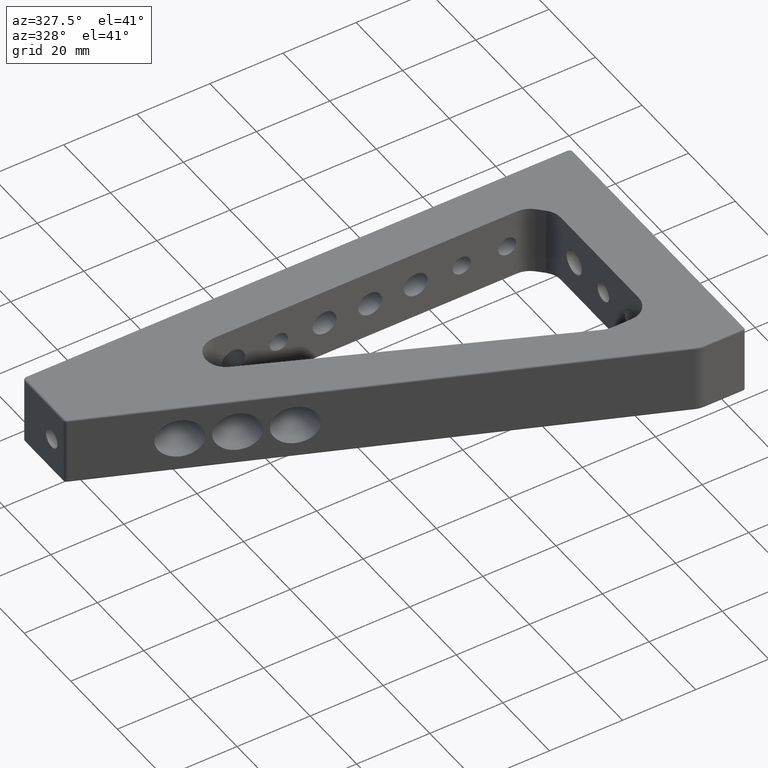
[diagram: clean part render]
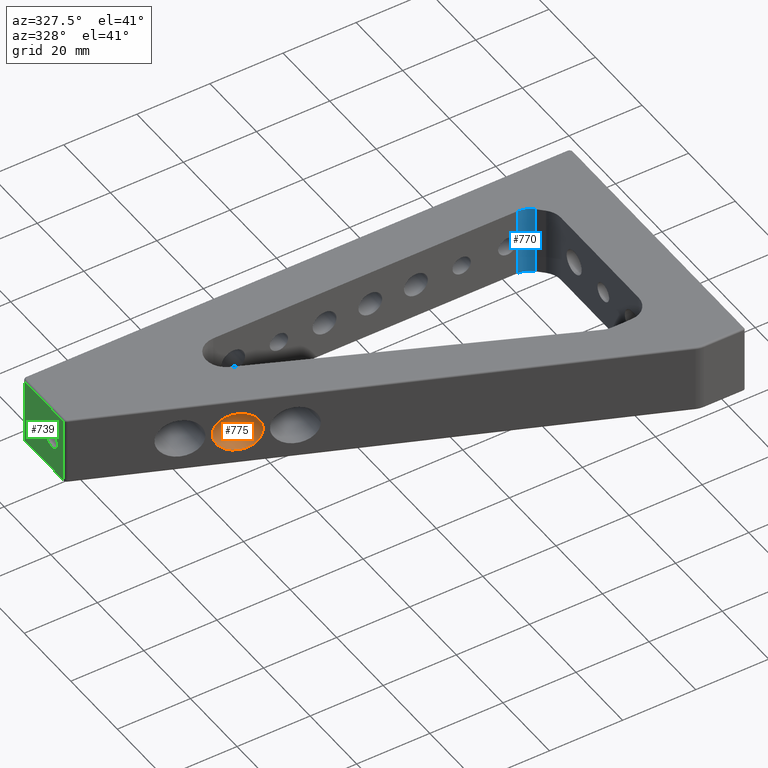
[diagram: same view with three faces highlighted in distinct colors, each labeled with its STEP entity id]
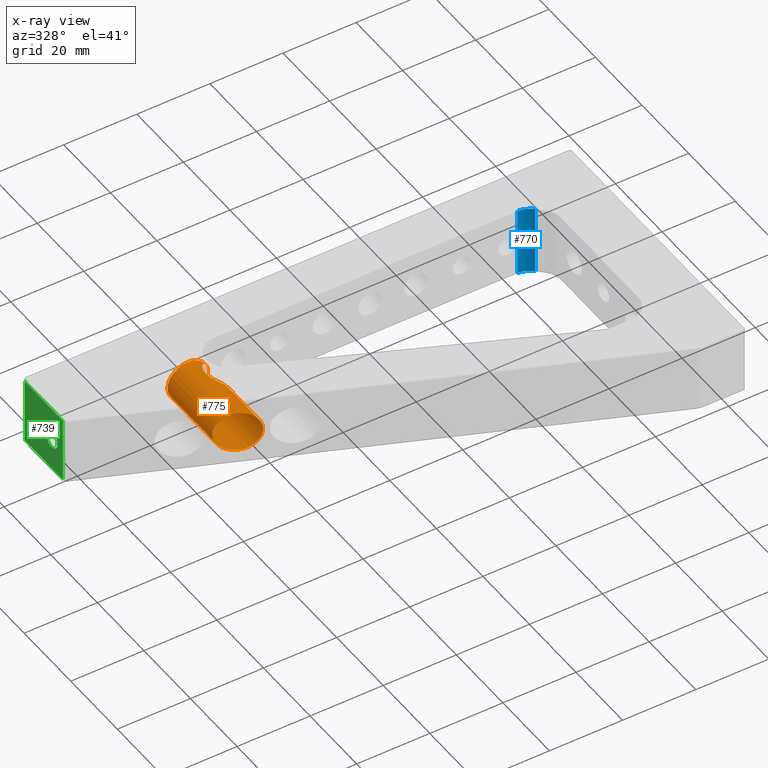
[diagram: x-ray of the same camera — body ghosted, the three highlighted faces saturated]
A machine part, auxiliary view with three faces highlighted in distinct colors.
The next image is the same camera in x-ray (body ghosted, the three faces saturated) — at least one of them is partly hidden behind the body in this view.
Their STEP definitions:

[orange] entity #775 — the highlighted cylindrical surface (bore or boss wall) has radius 5.5 mm, axis along (-0, -1, -0).
#28 = CARTESIAN_POINT ( 'NONE',  ( 692.1671691626518200, 643.1374962495044700, 0.0000000000000000000 ) ) ;
#29 = DIRECTION ( 'NONE',  ( -0.0000000000000000000, 1.000000000000000000, -0.0000000000000000000 ) ) ;
#30 = DIRECTION ( 'NONE',  ( 0.0000000000000000000, 0.0000000000000000000, -1.000000000000000000 ) ) ;
#167 = EDGE_CURVE ( 'NONE', #1269, #1275, #2055, .T. ) ;
#170 = EDGE_CURVE ( 'NONE', #1275, #1269, #2053, .T. ) ;
#177 = EDGE_CURVE ( 'NONE', #1444, #1444, #855, .T. ) ;
#281 = DIRECTION ( 'NONE',  ( 0.0000000000000000000, 0.0000000000000000000, -1.000000000000000000 ) ) ;
#282 = CARTESIAN_POINT ( 'NONE',  ( 692.1671691626518200, 658.6938454356084100, 0.0000000000000000000 ) ) ;
#283 = DIRECTION ( 'NONE',  ( -0.0000000000000000000, -1.000000000000000000, -0.0000000000000000000 ) ) ;
#368 = AXIS2_PLACEMENT_3D ( 'NONE', #282, #283, #281 ) ;
#401 = CARTESIAN_POINT ( 'NONE',  ( 697.9224593770711600, 632.1843651504041200, 0.9786666869081022100 ) ) ;
#405 = CARTESIAN_POINT ( 'NONE',  ( 696.8808069510799900, 632.6447559291560800, -2.839417558426098300 ) ) ;
#409 = CARTESIAN_POINT ( 'NONE',  ( 696.9663568887308400, 632.6069444659131000, -2.686595832992383100 ) ) ;
#413 = CARTESIAN_POINT ( 'NONE',  ( 696.7872590549611700, 632.6887477584369900, -2.989066394117855000 ) ) ;
#414 = CARTESIAN_POINT ( 'NONE',  ( 696.5908935349401600, 632.7889899744327500, -3.272676458112464500 ) ) ;
#415 = CARTESIAN_POINT ( 'NONE',  ( 696.4879448907412300, 632.8452533635331700, -3.407127397660297600 ) ) ;
#416 = CARTESIAN_POINT ( 'NONE',  ( 696.2743444030846800, 632.9721188765769300, -3.661793486900985600 ) ) ;
#417 = CARTESIAN_POINT ( 'NONE',  ( 696.1636873424187100, 633.0427179115999900, -3.782005812418727200 ) ) ;
#418 = CARTESIAN_POINT ( 'NONE',  ( 695.9365002325948800, 633.2006728595272300, -4.008474624035605900 ) ) ;
#419 = CARTESIAN_POINT ( 'NONE',  ( 695.8190525808998900, 633.2888011838032300, -4.115462845687698500 ) ) ;
#420 = CARTESIAN_POINT ( 'NONE',  ( 695.4683312896710300, 633.5764178730687500, -4.409702523978179300 ) ) ;
#421 = CARTESIAN_POINT ( 'NONE',  ( 695.2381724696458600, 633.7973826864373500, -4.569886257037434300 ) ) ;
#422 = CARTESIAN_POINT ( 'NONE',  ( 694.9114250652786500, 634.1771944206639100, -4.768153727529729700 ) ) ;
#423 = CARTESIAN_POINT ( 'NONE',  ( 694.8051661120160800, 634.3126055095212900, -4.827379032851460700 ) ) ;
#424 = CARTESIAN_POINT ( 'NONE',  ( 694.6058775688089800, 634.5932259920707600, -4.931056432591796900 ) ) ;
#425 = CARTESIAN_POINT ( 'NONE',  ( 694.5122081637468900, 634.7390589730753200, -4.975936078455037000 ) ) ;
#426 = CARTESIAN_POINT ( 'NONE',  ( 694.2505679715815200, 635.1928549969242100, -5.093725600879979600 ) ) ;
#427 = CARTESIAN_POINT ( 'NONE',  ( 694.1009624929187100, 635.5206870148692800, -5.150276987406107800 ) ) ;
#428 = CARTESIAN_POINT ( 'NONE',  ( 693.8704877008837000, 636.1945545403759800, -5.231024340270745500 ) ) ;
#429 = CARTESIAN_POINT ( 'NONE',  ( 693.7879264793998600, 636.5418737324128000, -5.256015558794457500 ) ) ;
#430 = CARTESIAN_POINT ( 'NONE',  ( 693.6910736354497000, 637.2571790702456800, -5.284909553802138200 ) ) ;
#431 = CARTESIAN_POINT ( 'NONE',  ( 693.6782333214536000, 637.6159179375100600, -5.288402131395511000 ) ) ;
#432 = CARTESIAN_POINT ( 'NONE',  ( 693.7108295897869500, 638.1504475995816400, -5.278943121926743300 ) ) ;
#433 = CARTESIAN_POINT ( 'NONE',  ( 693.7303613092607300, 638.3283111011551200, -5.273263672166591800 ) ) ;
#434 = CARTESIAN_POINT ( 'NONE',  ( 693.7871345132141400, 638.6833919287167900, -5.256100427730457300 ) ) ;
#435 = CARTESIAN_POINT ( 'NONE',  ( 693.8245046551035100, 638.8605430145200900, -5.244569507444348100 ) ) ;
#436 = CARTESIAN_POINT ( 'NONE',  ( 693.9604243448307000, 639.3786112790945700, -5.200318919394213400 ) ) ;
#437 = CARTESIAN_POINT ( 'NONE',  ( 694.0831728511625400, 639.7104893306553800, -5.158135081832070600 ) ) ;
#438 = CARTESIAN_POINT ( 'NONE',  ( 694.3133366897099000, 640.1873167455348700, -5.064664042165601300 ) ) ;
#439 = CARTESIAN_POINT ( 'NONE',  ( 694.3984534816901300, 640.3437626546891600, -5.028060653916016400 ) ) ;
#440 = CARTESIAN_POINT ( 'NONE',  ( 694.5799692810549000, 640.6425466266498500, -4.943522958425299800 ) ) ;
#441 = CARTESIAN_POINT ( 'NONE',  ( 694.6763325431862800, 640.7851352167477900, -4.895641847460916000 ) ) ;
#442 = CARTESIAN_POINT ( 'NONE',  ( 694.8786631820257800, 641.0570145184443600, -4.786544698603078600 ) ) ;
#443 = CARTESIAN_POINT ( 'NONE',  ( 694.9846357437721700, 641.1863026894881200, -4.725331973565339200 ) ) ;
#444 = CARTESIAN_POINT ( 'NONE',  ( 695.2046169771690500, 641.4316674308136000, -4.587024195512184700 ) ) ;
#445 = CARTESIAN_POINT ( 'NONE',  ( 695.3193783105651800, 641.5484244824454000, -4.509371822857669800 ) ) ;
#446 = CARTESIAN_POINT ( 'NONE',  ( 695.6678383220911400, 641.8738946148122300, -4.251910444968586900 ) ) ;
#447 = CARTESIAN_POINT ( 'NONE',  ( 695.9013846812368900, 642.0545492956479200, -4.051094064273423000 ) ) ;
#448 = CARTESIAN_POINT ( 'NONE',  ( 696.2398744661999200, 642.2814807045695000, -3.699932928400233600 ) ) ;
#449 = CARTESIAN_POINT ( 'NONE',  ( 696.3514552696102600, 642.3501330877977600, -3.573586891965387000 ) ) ;
#450 = CARTESIAN_POINT ( 'NONE',  ( 696.5637218870761000, 642.4716296934062700, -3.308942072727937500 ) ) ;
#451 = CARTESIAN_POINT ( 'NONE',  ( 696.6646248417743000, 642.5247135372260300, -3.170606700524966300 ) ) ;
#452 = CARTESIAN_POINT ( 'NONE',  ( 696.9498444634217500, 642.6651872351612800, -2.737779156130814700 ) ) ;
#453 = CARTESIAN_POINT ( 'NONE',  ( 697.1180882709064700, 642.7344591784403700, -2.421715488522070200 ) ) ;
#454 = CARTESIAN_POINT ( 'NONE',  ( 697.3885843754710500, 642.8362099894533200, -1.764406160487350200 ) ) ;
#455 = CARTESIAN_POINT ( 'NONE',  ( 697.4920563067163400, 642.8694334396382100, -1.423199280685387900 ) ) ;
#456 = CARTESIAN_POINT ( 'NONE',  ( 697.6322540520302500, 642.9128674723440300, -0.7160771197652516800 ) ) ;
#457 = CARTESIAN_POINT ( 'NONE',  ( 697.6671435487331800, 642.9225336579161200, -0.3577705389499207200 ) ) ;
#458 = CARTESIAN_POINT ( 'NONE',  ( 697.6671819484447500, 642.9225447206956700, 0.1782943006267921900 ) ) ;
#459 = CARTESIAN_POINT ( 'NONE',  ( 697.6585080990307700, 642.9200698013105500, 0.3571978922219235000 ) ) ;
#460 = CARTESIAN_POINT ( 'NONE',  ( 697.6234067950435900, 642.9097683327615900, 0.7154470960650933800 ) ) ;
#461 = CARTESIAN_POINT ( 'NONE',  ( 697.5968258110582400, 642.9018928631875300, 0.8949167475901613800 ) ) ;
#462 = CARTESIAN_POINT ( 'NONE',  ( 697.4922947601248800, 642.8695047948801900, 1.421698487708393100 ) ) ;
#463 = CARTESIAN_POINT ( 'NONE',  ( 697.3894846602768200, 642.8365112943505400, 1.761661509151281300 ) ) ;
#464 = CARTESIAN_POINT ( 'NONE',  ( 697.1871266431782000, 642.7604473246925600, 2.254225920597930700 ) ) ;
#465 = CARTESIAN_POINT ( 'NONE',  ( 697.1110021202463300, 642.7303150364239200, 2.416542781359748200 ) ) ;
#466 = CARTESIAN_POINT ( 'NONE',  ( 696.9458603666911400, 642.6597417555231000, 2.728602884843223600 ) ) ;
#467 = CARTESIAN_POINT ( 'NONE',  ( 696.8569738274412700, 642.6193806970732100, 2.878422504009833000 ) ) ;
#468 = CARTESIAN_POINT ( 'NONE',  ( 696.5734435697064600, 642.4799364258032000, 3.309543997534195400 ) ) ;
#469 = CARTESIAN_POINT ( 'NONE',  ( 696.3607432593083800, 642.3620646991614600, 3.573766252961908300 ) ) ;
#470 = CARTESIAN_POINT ( 'NONE',  ( 695.9056413177719400, 642.0578403125774700, 4.047430651704023500 ) ) ;
#471 = CARTESIAN_POINT ( 'NONE',  ( 695.6720162270629500, 641.8771389192911600, 4.248328190711819600 ) ) ;
#472 = CARTESIAN_POINT ( 'NONE',  ( 695.3263836248348800, 641.5552837722574400, 4.504433962459508200 ) ) ;
#473 = CARTESIAN_POINT ( 'NONE',  ( 695.2112362391524100, 641.4386820375729000, 4.582681231520285600 ) ) ;
#474 = CARTESIAN_POINT ( 'NONE',  ( 694.9886212037566800, 641.1910993205614200, 4.722999048878629800 ) ) ;
#475 = CARTESIAN_POINT ( 'NONE',  ( 694.8816758520977100, 641.0608583237032000, 4.784856352957392600 ) ) ;
#476 = CARTESIAN_POINT ( 'NONE',  ( 694.6779716005601100, 640.7875374950620000, 4.894820528198891900 ) ) ;
#477 = CARTESIAN_POINT ( 'NONE',  ( 694.5812074221878400, 640.6444596967284000, 4.942922810271940500 ) ) ;
#478 = CARTESIAN_POINT ( 'NONE',  ( 694.3993208206761700, 640.3453138701385100, 5.027679942318341600 ) ) ;
#479 = CARTESIAN_POINT ( 'NONE',  ( 694.3140606080754700, 640.1887436345206200, 5.064362526153193900 ) ) ;
#480 = CARTESIAN_POINT ( 'NONE',  ( 694.0830041020570900, 639.7102848184810000, 5.158218605672320900 ) ) ;
#481 = CARTESIAN_POINT ( 'NONE',  ( 693.9595576079473200, 639.3765693797020000, 5.200624955899161100 ) ) ;
#482 = CARTESIAN_POINT ( 'NONE',  ( 693.7775678100299500, 638.6803605137234900, 5.259826277290139600 ) ) ;
#483 = CARTESIAN_POINT ( 'NONE',  ( 693.7208003880616600, 638.3231793799900500, 5.276051984983761900 ) ) ;
#484 = CARTESIAN_POINT ( 'NONE',  ( 693.6887639024546400, 637.7838219820093900, 5.285345124115300700 ) ) ;
#485 = CARTESIAN_POINT ( 'NONE',  ( 693.6869484441633600, 637.6021644088746100, 5.285860783666783500 ) ) ;
#486 = CARTESIAN_POINT ( 'NONE',  ( 693.7009744671202000, 637.2432667419345800, 5.281807889047406900 ) ) ;
#487 = CARTESIAN_POINT ( 'NONE',  ( 693.7167098751842800, 637.0653235842502200, 5.277268593825633400 ) ) ;
#488 = CARTESIAN_POINT ( 'NONE',  ( 693.7894442864359200, 636.5359382505311000, 5.255547958818953100 ) ) ;
#489 = CARTESIAN_POINT ( 'NONE',  ( 693.8724266240898300, 636.1869654521607300, 5.230423072350436800 ) ) ;
#490 = CARTESIAN_POINT ( 'NONE',  ( 694.1053032485107200, 635.5099680517537300, 5.148676023095433200 ) ) ;
#491 = CARTESIAN_POINT ( 'NONE',  ( 694.2520676561991900, 635.1900219835062000, 5.093088603725155900 ) ) ;
#492 = CARTESIAN_POINT ( 'NONE',  ( 694.5997569847747900, 634.5874450100916400, 4.936483540076857000 ) ) ;
#493 = CARTESIAN_POINT ( 'NONE',  ( 694.8039979112013500, 634.3020876700079500, 4.833330822351451100 ) ) ;
#494 = CARTESIAN_POINT ( 'NONE',  ( 695.2364052930066700, 633.7994171240989100, 4.570967322525469000 ) ) ;
#495 = CARTESIAN_POINT ( 'NONE',  ( 695.4658393763837700, 633.5786414646987600, 4.411608214559561400 ) ) ;
#496 = CARTESIAN_POINT ( 'NONE',  ( 695.9345630634953700, 633.1938957221152600, 4.018738037446288700 ) ) ;
#497 = CARTESIAN_POINT ( 'NONE',  ( 696.1649729793585900, 633.0371595441483800, 3.791998726782913400 ) ) ;
#498 = CARTESIAN_POINT ( 'NONE',  ( 696.5946961804660300, 632.7817693849795000, 3.280044848370644100 ) ) ;
#499 = CARTESIAN_POINT ( 'NONE',  ( 696.7955621998396500, 632.6824325057463100, 2.991694115562671300 ) ) ;
#500 = CARTESIAN_POINT ( 'NONE',  ( 696.9663568887308400, 632.6069444659131000, 2.686595832992390200 ) ) ;
#502 = CARTESIAN_POINT ( 'NONE',  ( 696.9663568887308400, 632.6069444659131000, 2.686595832992390200 ) ) ;
#506 = CARTESIAN_POINT ( 'NONE',  ( 697.9224593770711600, 632.1843651504041200, -0.9786666869080955500 ) ) ;
#507 = CARTESIAN_POINT ( 'NONE',  ( 696.9663568887308400, 632.6069444659131000, -2.686595832992383100 ) ) ;
#563 = CARTESIAN_POINT ( 'NONE',  ( 697.6671691626518200, 619.3263130674613400, 0.0000000000000000000 ) ) ;
#564 = CARTESIAN_POINT ( 'NONE',  ( 697.6671691626518200, 619.3263130674613400, -10.99999999999991700 ) ) ;
#565 = CARTESIAN_POINT ( 'NONE',  ( 686.6671691626519300, 623.8826622535654000, -10.99999999999991700 ) ) ;
#566 = CARTESIAN_POINT ( 'NONE',  ( 686.6671691626519300, 623.8826622535654000, -6.735557395310391700E-016 ) ) ;
#567 = CARTESIAN_POINT ( 'NONE',  ( 686.6671691626519300, 623.8826622535654000, 10.99999999999991700 ) ) ;
#568 = CARTESIAN_POINT ( 'NONE',  ( 697.6671691626518200, 619.3263130674613400, 10.99999999999991700 ) ) ;
#569 = CARTESIAN_POINT ( 'NONE',  ( 697.6671691626518200, 619.3263130674613400, 0.0000000000000000000 ) ) ;
#720 = EDGE_CURVE ( 'NONE', #1436, #1436, #2059, .T. ) ;
#775 = ADVANCED_FACE ( 'NONE', ( #1568, #1555, #1559 ), #1552, .F. ) ;
#855 = CIRCLE ( 'NONE', #2000, 5.499999999999959100 ) ;
#1074 = ORIENTED_EDGE ( 'NONE', *, *, #720, .F. ) ;
#1075 = ORIENTED_EDGE ( 'NONE', *, *, #170, .T. ) ;
#1076 = ORIENTED_EDGE ( 'NONE', *, *, #167, .T. ) ;
#1077 = ORIENTED_EDGE ( 'NONE', *, *, #177, .T. ) ;
#1269 = VERTEX_POINT ( 'NONE', #1943 ) ;
#1275 = VERTEX_POINT ( 'NONE', #1949 ) ;
#1309 = EDGE_LOOP ( 'NONE', ( #1076, #1075 ) ) ;
#1310 = EDGE_LOOP ( 'NONE', ( #1077 ) ) ;
#1313 = EDGE_LOOP ( 'NONE', ( #1074 ) ) ;
#1436 = VERTEX_POINT ( 'NONE', #1802 ) ;
#1444 = VERTEX_POINT ( 'NONE', #1794 ) ;
#1552 = CYLINDRICAL_SURFACE ( 'NONE', #368, 5.499999999999959100 ) ;
#1555 = FACE_BOUND ( 'NONE', #1309, .T. ) ;
#1559 = FACE_OUTER_BOUND ( 'NONE', #1313, .T. ) ;
#1568 = FACE_OUTER_BOUND ( 'NONE', #1310, .T. ) ;
#1794 = CARTESIAN_POINT ( 'NONE',  ( 692.1671691626518200, 643.1374962495044700, -5.499999999999959100 ) ) ;
#1802 = CARTESIAN_POINT ( 'NONE',  ( 697.6671691626518200, 619.3263130674613400, 0.0000000000000000000 ) ) ;
#1943 = CARTESIAN_POINT ( 'NONE',  ( 696.9663568887308400, 632.6069444659131000, -2.686595832992383100 ) ) ;
#1949 = CARTESIAN_POINT ( 'NONE',  ( 696.9663568887308400, 632.6069444659131000, 2.686595832992390200 ) ) ;
#2000 = AXIS2_PLACEMENT_3D ( 'NONE', #28, #29, #30 ) ;
#2053 =( BOUNDED_CURVE ( )  B_SPLINE_CURVE ( 3, ( #502, #401, #506, #507 ),
 .UNSPECIFIED., .F., .F. ) 
 B_SPLINE_CURVE_WITH_KNOTS ( ( 4, 4 ),
 ( 5.772847578788334200, 6.793523035570837400 ),
 .UNSPECIFIED. ) 
 CURVE ( )  GEOMETRIC_REPRESENTATION_ITEM ( )  RATIONAL_B_SPLINE_CURVE ( ( 1.000000000000000000, 0.9150530577065518800, 0.9150530577065518800, 1.000000000000000000 ) ) 
 REPRESENTATION_ITEM ( '' )  );
#2055 = B_SPLINE_CURVE_WITH_KNOTS ( 'NONE', 3,
 ( #409, #405, #413, #414, #415, #416, #417, #418, #419, #420, #421, #422, #423, #424, #425, #426, #427, #428, #429, #430, #431, #432, #433, #434, #435, #436, #437, #438, #439, #440, #441, #442, #443, #444, #445, #446, #447, #448, #449, #450, #451, #452, #453, #454, #455, #456, #457, #458, #459, #460, #461, #462, #463, #464, #465, #466, #467, #468, #469, #470, #471, #472, #473, #474, #475, #476, #477, #478, #479, #480, #481, #482, #483, #484, #485, #486, #487, #488, #489, #490, #491, #492, #493, #494, #495, #496, #497, #498, #499, #500 ),
 .UNSPECIFIED., .F., .F.,
 ( 4, 2, 2, 2, 2, 2, 2, 2, 2, 2, 2, 2, 2, 2, 2, 2, 2, 2, 2, 2, 2, 2, 2, 2, 2, 2, 2, 2, 2, 2, 2, 2, 2, 2, 2, 2, 2, 2, 2, 2, 2, 2, 2, 2, 4 ),
 ( 0.01278188120324078900, 0.01331654994235418600, 0.01385121868146758400, 0.01438588742058098000, 0.01492055615969437700, 0.01598989363792121400, 0.01652456237703452800, 0.01705923111614784600, 0.01812856859437431800, 0.01919790607260079100, 0.02026724355082726300, 0.02080191228994065400, 0.02133658102905404400, 0.02240591850728115100, 0.02294058724639470200, 0.02347525598550825500, 0.02400992472462180900, 0.02454459346373535900, 0.02561393094196226500, 0.02614859968107568300, 0.02668326842018910200, 0.02775260589841594200, 0.02882194337664277500, 0.02989128085486961200, 0.03042594959398303700, 0.03096061833309645500, 0.03202995581132335500, 0.03256462455043680800, 0.03309929328955025400, 0.03416863076777707600, 0.03523796824600389200, 0.03577263698511720000, 0.03630730572423051400, 0.03684197446334382100, 0.03737664320245712900, 0.03844598068068360400, 0.03951531815891008000, 0.04004998689802332500, 0.04058465563713657700, 0.04165399311536307400, 0.04272333059358956300, 0.04379266807181606000, 0.04486200555004255700, 0.04593134302826904600, 0.04700068050649554300 ),
 .UNSPECIFIED. ) ;
#2059 =( BOUNDED_CURVE ( )  B_SPLINE_CURVE ( 3, ( #563, #564, #565, #566, #567, #568, #569 ),
 .UNSPECIFIED., .T., .T. ) 
 B_SPLINE_CURVE_WITH_KNOTS ( ( 4, 3, 4 ),
 ( 0.0000000000000000000, 3.141592653589793100, 6.283185307179586200 ),
 .UNSPECIFIED. ) 
 CURVE ( )  GEOMETRIC_REPRESENTATION_ITEM ( )  RATIONAL_B_SPLINE_CURVE ( ( 1.000000000000000000, 0.3333333333333333700, 0.3333333333333333700, 1.000000000000000000, 0.3333333333333333700, 0.3333333333333333700, 1.000000000000000000 ) ) 
 REPRESENTATION_ITEM ( '' )  );

[blue] entity #770 — the highlighted cylindrical surface (edge-blend (fillet) strip) has radius 5.5 mm, axis along (-0, -0, -1).
#85 = CARTESIAN_POINT ( 'NONE',  ( 782.3889945695998400, 637.6374962495044700, 9.500000000000000000 ) ) ;
#86 = DIRECTION ( 'NONE',  ( 0.0000000000000000000, 0.0000000000000000000, 1.000000000000000000 ) ) ;
#87 = DIRECTION ( 'NONE',  ( 1.000000000000000000, 0.0000000000000000000, 0.0000000000000000000 ) ) ;
#155 = EDGE_CURVE ( 'NONE', #1229, #1249, #888, .T. ) ;
#156 = EDGE_CURVE ( 'NONE', #1228, #1250, #885, .T. ) ;
#263 = DIRECTION ( 'NONE',  ( -1.000000000000000000, 0.0000000000000000000, 0.0000000000000000000 ) ) ;
#265 = DIRECTION ( 'NONE',  ( -0.0000000000000000000, -0.0000000000000000000, -1.000000000000000000 ) ) ;
#266 = CARTESIAN_POINT ( 'NONE',  ( 782.3889945695998400, 637.6374962495044700, 9.500000000000000000 ) ) ;
#373 = AXIS2_PLACEMENT_3D ( 'NONE', #266, #265, #263 ) ;
#379 = DIRECTION ( 'NONE',  ( -0.0000000000000000000, -0.0000000000000000000, -1.000000000000000000 ) ) ;
#532 = CARTESIAN_POINT ( 'NONE',  ( 782.3889945695998400, 637.6374962495044700, -9.500000000000000000 ) ) ;
#533 = DIRECTION ( 'NONE',  ( 0.0000000000000000000, 0.0000000000000000000, 1.000000000000000000 ) ) ;
#534 = DIRECTION ( 'NONE',  ( 1.000000000000000000, 0.0000000000000000000, 0.0000000000000000000 ) ) ;
#672 = AXIS2_PLACEMENT_3D ( 'NONE', #532, #533, #534 ) ;
#688 = EDGE_CURVE ( 'NONE', #1229, #1228, #830, .T. ) ;
#708 = EDGE_CURVE ( 'NONE', #1249, #1250, #1396, .T. ) ;
#770 = ADVANCED_FACE ( 'NONE', ( #1569 ), #1564, .F. ) ;
#830 = CIRCLE ( 'NONE', #1985, 5.499999999999949400 ) ;
#879 = VECTOR ( 'NONE', #379, 1000.000000000000000 ) ;
#883 = VECTOR ( 'NONE', #2064, 1000.000000000000000 ) ;
#885 = LINE ( 'NONE', #1689, #879 ) ;
#888 = LINE ( 'NONE', #2067, #883 ) ;
#1118 = ORIENTED_EDGE ( 'NONE', *, *, #156, .T. ) ;
#1119 = ORIENTED_EDGE ( 'NONE', *, *, #688, .T. ) ;
#1120 = ORIENTED_EDGE ( 'NONE', *, *, #155, .F. ) ;
#1121 = ORIENTED_EDGE ( 'NONE', *, *, #708, .F. ) ;
#1228 = VERTEX_POINT ( 'NONE', #1903 ) ;
#1229 = VERTEX_POINT ( 'NONE', #1904 ) ;
#1249 = VERTEX_POINT ( 'NONE', #1923 ) ;
#1250 = VERTEX_POINT ( 'NONE', #1924 ) ;
#1340 = EDGE_LOOP ( 'NONE', ( #1121, #1120, #1119, #1118 ) ) ;
#1396 = CIRCLE ( 'NONE', #672, 5.499999999999949400 ) ;
#1564 = CYLINDRICAL_SURFACE ( 'NONE', #373, 5.499999999999949400 ) ;
#1569 = FACE_OUTER_BOUND ( 'NONE', #1340, .T. ) ;
#1689 = CARTESIAN_POINT ( 'NONE',  ( 782.3889945695998400, 643.1374962495044700, 9.500000000000000000 ) ) ;
#1903 = CARTESIAN_POINT ( 'NONE',  ( 782.3889945695998400, 643.1374962495044700, 9.500000000000000000 ) ) ;
#1904 = CARTESIAN_POINT ( 'NONE',  ( 786.2780818661258300, 641.5265835460304500, 9.500000000000000000 ) ) ;
#1923 = CARTESIAN_POINT ( 'NONE',  ( 786.2780818661258300, 641.5265835460304500, -9.500000000000000000 ) ) ;
#1924 = CARTESIAN_POINT ( 'NONE',  ( 782.3889945695998400, 643.1374962495044700, -9.500000000000000000 ) ) ;
#1985 = AXIS2_PLACEMENT_3D ( 'NONE', #85, #86, #87 ) ;
#2064 = DIRECTION ( 'NONE',  ( -0.0000000000000000000, -0.0000000000000000000, -1.000000000000000000 ) ) ;
#2067 = CARTESIAN_POINT ( 'NONE',  ( 786.2780818661258300, 641.5265835460304500, 9.500000000000000000 ) ) ;

[green] entity #739 — the highlighted planar face has unit normal (1, 0, 0).
#541 = DIRECTION ( 'NONE',  ( 0.0000000000000000000, -1.000000000000000000, 0.0000000000000000000 ) ) ;
#542 = CARTESIAN_POINT ( 'NONE',  ( 654.6671691626519300, 654.1374962495044700, 9.500000000000000000 ) ) ;
#547 = CARTESIAN_POINT ( 'NONE',  ( 654.6671691626519300, 642.6374962495044700, 0.0000000000000000000 ) ) ;
#548 = DIRECTION ( 'NONE',  ( -1.000000000000000000, -0.0000000000000000000, -0.0000000000000000000 ) ) ;
#549 = DIRECTION ( 'NONE',  ( 0.0000000000000000000, 0.0000000000000000000, 1.000000000000000000 ) ) ;
#550 = DIRECTION ( 'NONE',  ( 0.0000000000000000000, 0.0000000000000000000, -1.000000000000000000 ) ) ;
#551 = CARTESIAN_POINT ( 'NONE',  ( 654.6671691626519300, 637.1374962495044700, -9.000000000000000000 ) ) ;
#552 = CARTESIAN_POINT ( 'NONE',  ( 654.6671691626519300, 637.8056748874238300, 9.500000000000000000 ) ) ;
#553 = DIRECTION ( 'NONE',  ( -0.0000000000000000000, -0.0000000000000000000, 1.000000000000000000 ) ) ;
#554 = CARTESIAN_POINT ( 'NONE',  ( 654.6671691626519300, 654.1374962495044700, 9.000000000000000000 ) ) ;
#555 = DIRECTION ( 'NONE',  ( -0.0000000000000000000, 1.000000000000000000, -0.0000000000000000000 ) ) ;
#612 = PLANE ( 'NONE',  #662 ) ;
#613 = CARTESIAN_POINT ( 'NONE',  ( 654.6671691626519300, 637.1374962495044700, 9.500000000000000000 ) ) ;
#618 = DIRECTION ( 'NONE',  ( 1.000000000000000000, 0.0000000000000000000, 0.0000000000000000000 ) ) ;
#619 = DIRECTION ( 'NONE',  ( 0.0000000000000000000, 0.0000000000000000000, -1.000000000000000000 ) ) ;
#662 = AXIS2_PLACEMENT_3D ( 'NONE', #613, #618, #619 ) ;
#669 = AXIS2_PLACEMENT_3D ( 'NONE', #547, #548, #549 ) ;
#714 = EDGE_CURVE ( 'NONE', #1438, #1438, #1458, .T. ) ;
#715 = EDGE_CURVE ( 'NONE', #1255, #1231, #1385, .T. ) ;
#716 = EDGE_CURVE ( 'NONE', #1231, #1257, #1389, .T. ) ;
#717 = EDGE_CURVE ( 'NONE', #1257, #1258, #1394, .T. ) ;
#718 = EDGE_CURVE ( 'NONE', #1258, #1255, #1672, .T. ) ;
#739 = ADVANCED_FACE ( 'NONE', ( #1650, #1647 ), #612, .F. ) ;
#941 = ORIENTED_EDGE ( 'NONE', *, *, #717, .T. ) ;
#942 = ORIENTED_EDGE ( 'NONE', *, *, #718, .T. ) ;
#947 = ORIENTED_EDGE ( 'NONE', *, *, #714, .F. ) ;
#950 = ORIENTED_EDGE ( 'NONE', *, *, #715, .T. ) ;
#952 = ORIENTED_EDGE ( 'NONE', *, *, #716, .T. ) ;
#1017 = EDGE_LOOP ( 'NONE', ( #950, #952, #941, #942 ) ) ;
#1019 = EDGE_LOOP ( 'NONE', ( #947 ) ) ;
#1231 = VERTEX_POINT ( 'NONE', #1906 ) ;
#1255 = VERTEX_POINT ( 'NONE', #1929 ) ;
#1257 = VERTEX_POINT ( 'NONE', #1931 ) ;
#1258 = VERTEX_POINT ( 'NONE', #1932 ) ;
#1385 = LINE ( 'NONE', #542, #1393 ) ;
#1389 = LINE ( 'NONE', #551, #1448 ) ;
#1390 = VECTOR ( 'NONE', #555, 1000.000000000000000 ) ;
#1391 = VECTOR ( 'NONE', #553, 1000.000000000000000 ) ;
#1393 = VECTOR ( 'NONE', #550, 1000.000000000000000 ) ;
#1394 = LINE ( 'NONE', #552, #1391 ) ;
#1438 = VERTEX_POINT ( 'NONE', #1800 ) ;
#1448 = VECTOR ( 'NONE', #541, 1000.000000000000000 ) ;
#1458 = CIRCLE ( 'NONE', #669, 2.499999999999946700 ) ;
#1647 = FACE_OUTER_BOUND ( 'NONE', #1017, .T. ) ;
#1650 = FACE_BOUND ( 'NONE', #1019, .T. ) ;
#1672 = LINE ( 'NONE', #554, #1390 ) ;
#1800 = CARTESIAN_POINT ( 'NONE',  ( 654.6671691626519300, 642.6374962495044700, 2.499999999999946700 ) ) ;
#1906 = CARTESIAN_POINT ( 'NONE',  ( 654.6671691626519300, 654.1374962495044700, -9.000000000000000000 ) ) ;
#1929 = CARTESIAN_POINT ( 'NONE',  ( 654.6671691626519300, 654.1374962495044700, 9.000000000000000000 ) ) ;
#1931 = CARTESIAN_POINT ( 'NONE',  ( 654.6671691626519300, 637.8056748874238300, -9.000000000000000000 ) ) ;
#1932 = CARTESIAN_POINT ( 'NONE',  ( 654.6671691626519300, 637.8056748874238300, 9.000000000000000000 ) ) ;